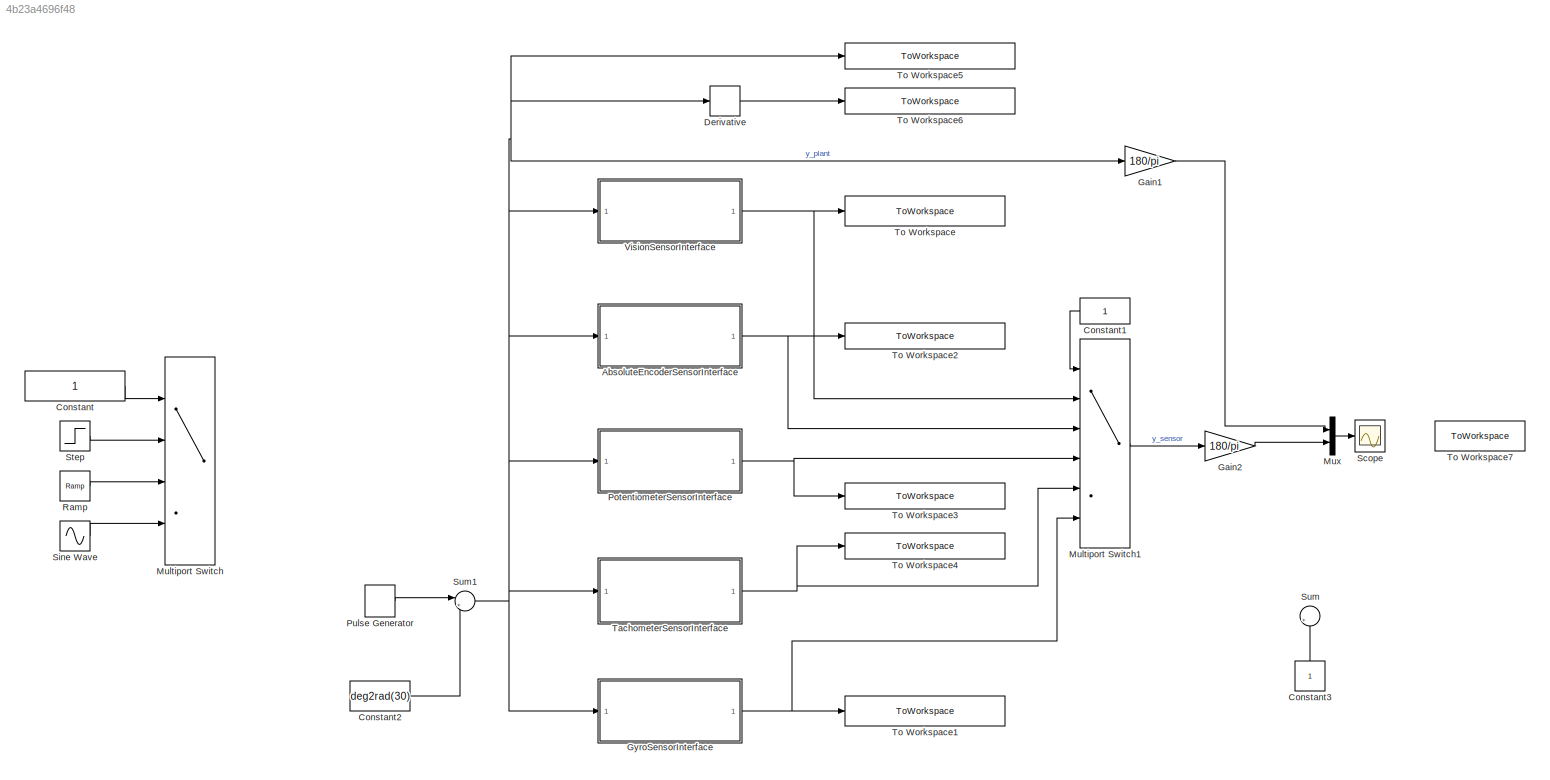
MODEL slx_4b23a4696f48
KIND model
CONFIG AbsTol = auto
CONFIG EnableMultiTasking = off
CONFIG FixedStep = auto
CONFIG InitFcn = ELEN90064_Project_Parameters
CONFIG MaxStep = auto
CONFIG MinStep = auto
CONFIG RelTol = 1e-3
CONFIG SampleTimeConstraint = Unconstrained
CONFIG SolverName = VariableStepAuto
CONFIG StartTime = 0.0
CONFIG StopTime = 1
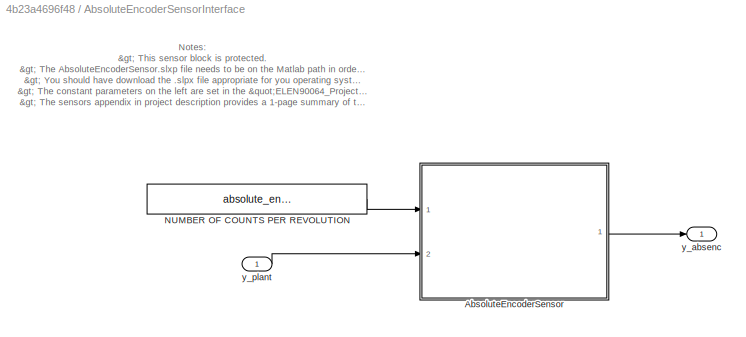
BLOCK [SubSystem] AbsoluteEncoderSensorInterface
  Ports = [1, 1]
  RequestExecContextInheritance = off
  TreatAsAtomicUnit = on
BLOCK [ModelReference] AbsoluteEncoderSensorInterface/AbsoluteEncoderSensor
  CopyOfModelProtected = on
  ModelNameDialog = AbsoluteEncoderSensor.slxp
  ModelReferenceVersion = 1.16
  Ports = [2, 1]
BLOCK [Constant] AbsoluteEncoderSensorInterface/NUMBER OF COUNTS PER REVOLUTION
  Value = absolute_encoder_counts_per_revolution
BLOCK [Outport] AbsoluteEncoderSensorInterface/y_absenc
BLOCK [Inport] AbsoluteEncoderSensorInterface/y_plant
BLOCK [Constant] Constant
BLOCK [Constant] Constant1
BLOCK [Constant] Constant2
  Value = deg2rad(30)
BLOCK [Constant] Constant3
  NameLocation = right
BLOCK [Derivative] Derivative
BLOCK [Gain] Gain1
  Gain = 180/pi
BLOCK [Gain] Gain2
  Gain = 180/pi
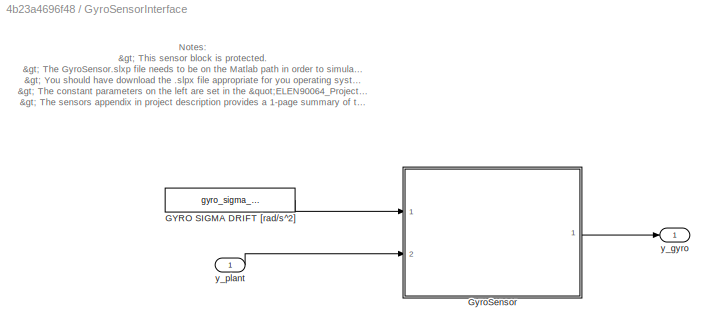
BLOCK [SubSystem] GyroSensorInterface
  Ports = [1, 1]
  RequestExecContextInheritance = off
  TreatAsAtomicUnit = on
BLOCK [Constant] GyroSensorInterface/GYRO SIGMA DRIFT [rad//s^2]
  Value = gyro_sigma_drift
BLOCK [ModelReference] GyroSensorInterface/GyroSensor
  CopyOfModelProtected = on
  ModelNameDialog = GyroSensor.slxp
  ModelReferenceVersion = 1.18
  Ports = [2, 1]
BLOCK [Outport] GyroSensorInterface/y_gyro
BLOCK [Inport] GyroSensorInterface/y_plant
BLOCK [MultiPortSwitch] Multiport Switch
  InputSameDT = off
  Ports = [4, 1]
  SaturateOnIntegerOverflow = off
BLOCK [MultiPortSwitch] Multiport Switch1
  InputSameDT = off
  Inputs = 5
  Ports = [6, 1]
  SaturateOnIntegerOverflow = off
BLOCK [Mux] Mux
  DisplayOption = bar
  Inputs = 2
  Ports = [2, 1]
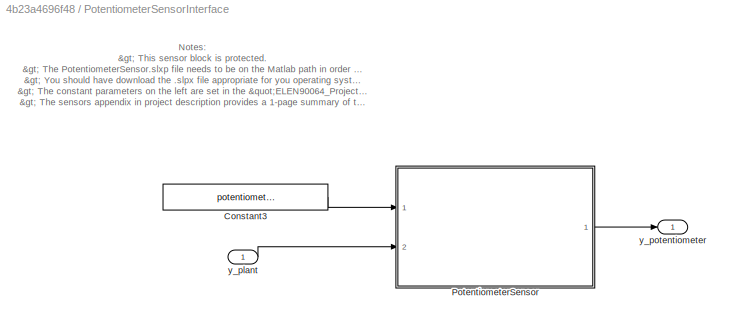
BLOCK [SubSystem] PotentiometerSensorInterface
  Ports = [1, 1]
  RequestExecContextInheritance = off
  TreatAsAtomicUnit = on
BLOCK [Constant] PotentiometerSensorInterface/Constant3
  Value = potentiometer_linearity_percent
BLOCK [ModelReference] PotentiometerSensorInterface/PotentiometerSensor
  CopyOfModelProtected = on
  ModelNameDialog = PotentiometerSensor.slxp
  ModelReferenceVersion = 1.21
  Ports = [2, 1]
BLOCK [Inport] PotentiometerSensorInterface/y_plant
BLOCK [Outport] PotentiometerSensorInterface/y_potentiometer
BLOCK [DiscretePulseGenerator] Pulse Generator
  Amplitude = deg2rad(30)
  Period = 10
  Ports = [0, 1]
  PulseType = Time based
  PulseWidth = 50
BLOCK [Reference] Ramp  REF=simulink/Sources/Ramp
  Ports = [0, 1]
  SourceBlock = simulink/Sources/Ramp
  SourceProductBaseCode = SL
  SourceType = Ramp
BLOCK [Scope] Scope
  Floating = off
  NumInputPorts = 1
  Ports = [1]
  ScopeSpecificationString = Simulink.scopes.TimeScopeBlockCfg('CurrentConfiguration', extmgr.ConfigurationSet(extmgr.Configuration('Core','General UI',true,'FigureColor',[1 1 1]),extmgr.Configuration('Core','Source UI',true),extmgr.Configuration('Sources','WiredSimulink',true),extmgr.Configuration('Visuals','Time Domain',true,'SerializedDisplays',{struct('MinYLimReal','25.19152','MaxYLimReal','66.88027','YLabelReal','','MinY...<+1783ch>
BLOCK [Sin] Sine Wave
  Amplitude = deg2rad(90)
  Frequency = 4*pi
  Ports = [0, 1]
  SampleTime = 0
BLOCK [Step] Step
  After = deg2rad(90)
  Before = theta_l_init
  SampleTime = 0
  Time = 0.1
BLOCK [Sum] Sum
  Inputs = |+-
  Ports = [2, 1]
BLOCK [Sum] Sum1
  Inputs = |++
  Ports = [2, 1]
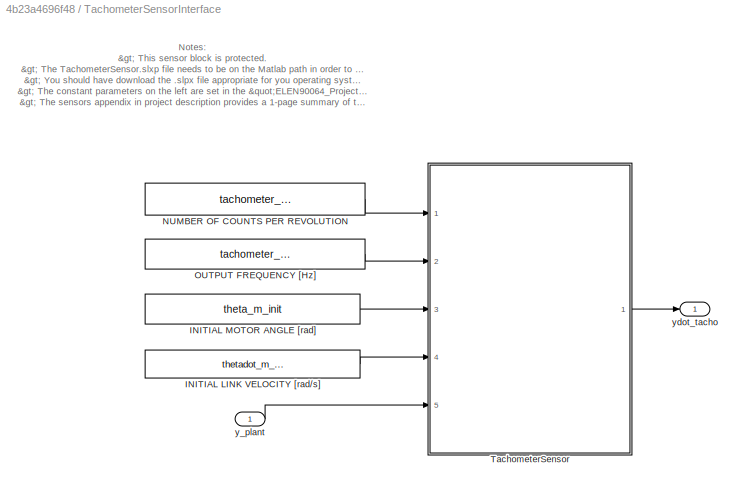
BLOCK [SubSystem] TachometerSensorInterface
  Ports = [1, 1]
  RequestExecContextInheritance = off
  TreatAsAtomicUnit = on
BLOCK [Constant] TachometerSensorInterface/INITIAL LINK VELOCITY [rad//s]
  Value = thetadot_m_init
BLOCK [Constant] TachometerSensorInterface/INITIAL MOTOR ANGLE [rad]
  Value = theta_m_init
BLOCK [Constant] TachometerSensorInterface/NUMBER OF COUNTS PER REVOLUTION
  Value = tachometer_counts_per_revolution
BLOCK [Constant] TachometerSensorInterface/OUTPUT FREQUENCY [Hz]
  Value = tachometer_output_frequency
BLOCK [ModelReference] TachometerSensorInterface/TachometerSensor
  CopyOfModelProtected = on
  ModelNameDialog = TachometerSensor.slxp
  ModelReferenceVersion = 1.31
  Ports = [5, 1]
BLOCK [Inport] TachometerSensorInterface/y_plant
BLOCK [Outport] TachometerSensorInterface/ydot_tacho
BLOCK [ToWorkspace] To Workspace
  FixptAsFi = on
  MaxDataPoints = inf
  Ports = [1]
  SampleTime = 1/1000
  SaveFormat = Timeseries
  VariableName = VisionSensor
BLOCK [ToWorkspace] To Workspace1
  FixptAsFi = on
  MaxDataPoints = inf
  Ports = [1]
  SampleTime = 1/1000
  SaveFormat = Timeseries
  VariableName = GyroSensor
BLOCK [ToWorkspace] To Workspace2
  FixptAsFi = on
  MaxDataPoints = inf
  Ports = [1]
  SampleTime = 1/1000
  SaveFormat = Timeseries
  VariableName = AbsoluteEncoderSensor
BLOCK [ToWorkspace] To Workspace3
  FixptAsFi = on
  MaxDataPoints = inf
  Ports = [1]
  SampleTime = 1/1000
  SaveFormat = Timeseries
  VariableName = PotentiometerSensor
BLOCK [ToWorkspace] To Workspace4
  FixptAsFi = on
  MaxDataPoints = inf
  Ports = [1]
  SampleTime = 1/1000
  SaveFormat = Timeseries
  VariableName = TachometerSensor
BLOCK [ToWorkspace] To Workspace5
  FixptAsFi = on
  MaxDataPoints = inf
  Ports = [1]
  SampleTime = 1/1000
  SaveFormat = Timeseries
  VariableName = InputSignal
BLOCK [ToWorkspace] To Workspace6
  FixptAsFi = on
  MaxDataPoints = inf
  Ports = [1]
  SampleTime = 1/1000
  SaveFormat = Timeseries
  VariableName = InputSignalDerivative
BLOCK [ToWorkspace] To Workspace7
  FixptAsFi = on
  MaxDataPoints = inf
  Ports = [1]
  SampleTime = -1
  SaveFormat = Timeseries
  VariableName = simout
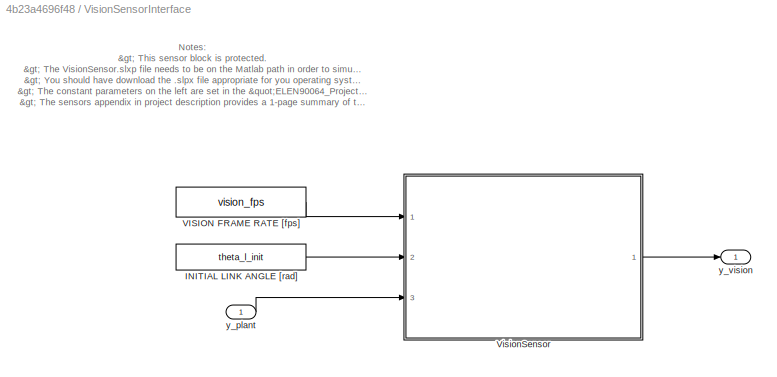
BLOCK [SubSystem] VisionSensorInterface
  Ports = [1, 1]
  RequestExecContextInheritance = off
  TreatAsAtomicUnit = on
BLOCK [Constant] VisionSensorInterface/INITIAL LINK ANGLE [rad]
  Value = theta_l_init
BLOCK [Constant] VisionSensorInterface/VISION FRAME RATE [fps]
  Value = vision_fps
BLOCK [ModelReference] VisionSensorInterface/VisionSensor
  CopyOfModelProtected = on
  ModelNameDialog = VisionSensor.slxp
  ModelReferenceVersion = 1.19
  Ports = [3, 1]
BLOCK [Inport] VisionSensorInterface/y_plant
BLOCK [Outport] VisionSensorInterface/y_vision
ANNOTATION AbsoluteEncoderSensorInterface: Notes: > This sensor block is protected. > The AbsoluteEncoderSensor.slxp file needs to be on the Matlab path in order to simulate this sensor. > You should have download the .slpx file appropriate for you operating system {Windows, Mac, Linux}. > The constant parameters on the left are set in the " ELEN90064_Project_Parameters.m " script. > The sensors appendix in project description provides a 1...<+190ch>
ANNOTATION GyroSensorInterface: Notes: > This sensor block is protected. > The GyroSensor.slxp file needs to be on the Matlab path in order to simulate this sensor. > You should have download the .slpx file appropriate for you operating system {Windows, Mac, Linux}. > The constant parameters on the left are set in the " ELEN90064_Project_Parameters.m " script. > The sensors appendix in project description provides a 1-page summa...<+179ch>
ANNOTATION PotentiometerSensorInterface: Notes: > This sensor block is protected. > The PotentiometerSensor.slxp file needs to be on the Matlab path in order to simulate this sensor. > You should have download the .slpx file appropriate for you operating system {Windows, Mac, Linux}. > The constant parameters on the left are set in the " ELEN90064_Project_Parameters.m " script. > The sensors appendix in project description provides a 1-p...<+188ch>
ANNOTATION TachometerSensorInterface: Notes: > This sensor block is protected. > The TachometerSensor.slxp file needs to be on the Matlab path in order to simulate this sensor. > You should have download the .slpx file appropriate for you operating system {Windows, Mac, Linux}. > The constant parameters on the left are set in the "ELEN90064_Project_Parameters.m" script. > The sensors appendix in project description provides a 1-page s...<+183ch>
ANNOTATION VisionSensorInterface: Notes: > This sensor block is protected. > The VisionSensor.slxp file needs to be on the Matlab path in order to simulate this sensor. > You should have download the .slpx file appropriate for you operating system {Windows, Mac, Linux}. > The constant parameters on the left are set in the "ELEN90064_Project_Parameters.m" script. > The sensors appendix in project description provides a 1-page summa...<+179ch>
LINE AbsoluteEncoderSensorInterface/AbsoluteEncoderSensor:1 -> AbsoluteEncoderSensorInterface/y_absenc:1
LINE AbsoluteEncoderSensorInterface/NUMBER OF COUNTS PER REVOLUTION:1 -> AbsoluteEncoderSensorInterface/AbsoluteEncoderSensor:1
LINE AbsoluteEncoderSensorInterface/y_plant:1 -> AbsoluteEncoderSensorInterface/AbsoluteEncoderSensor:2
NET AbsoluteEncoderSensorInterface:1 -> Multiport Switch1:3, To Workspace2:1
LINE Constant1:1 -> Multiport Switch1:1
LINE Constant2:1 -> Sum1:2
LINE Constant3:1 -> Sum:2
LINE Constant:1 -> Multiport Switch:1
LINE Derivative:1 -> To Workspace6:1
LINE Gain1:1 -> Mux:1
LINE Gain2:1 -> Mux:2
LINE GyroSensorInterface/GYRO SIGMA DRIFT [rad//s^2]:1 -> GyroSensorInterface/GyroSensor:1
LINE GyroSensorInterface/GyroSensor:1 -> GyroSensorInterface/y_gyro:1
LINE GyroSensorInterface/y_plant:1 -> GyroSensorInterface/GyroSensor:2
NET GyroSensorInterface:1 -> Multiport Switch1:6, To Workspace1:1
LINE Multiport Switch1:1 -> Gain2:1
LINE Mux:1 -> Scope:1
LINE PotentiometerSensorInterface/Constant3:1 -> PotentiometerSensorInterface/PotentiometerSensor:1
LINE PotentiometerSensorInterface/PotentiometerSensor:1 -> PotentiometerSensorInterface/y_potentiometer:1
LINE PotentiometerSensorInterface/y_plant:1 -> PotentiometerSensorInterface/PotentiometerSensor:2
NET PotentiometerSensorInterface:1 -> Multiport Switch1:4, To Workspace3:1
LINE Pulse Generator:1 -> Sum1:1
LINE Ramp:1 -> Multiport Switch:3
LINE Sine Wave:1 -> Multiport Switch:4
LINE Step:1 -> Multiport Switch:2
NET Sum1:1 -> AbsoluteEncoderSensorInterface:1, Derivative:1, Gain1:1, GyroSensorInterface:1, PotentiometerSensorInterface:1, TachometerSensorInterface:1, To Workspace5:1, VisionSensorInterface:1
LINE TachometerSensorInterface/INITIAL LINK VELOCITY [rad//s]:1 -> TachometerSensorInterface/TachometerSensor:4
LINE TachometerSensorInterface/INITIAL MOTOR ANGLE [rad]:1 -> TachometerSensorInterface/TachometerSensor:3
LINE TachometerSensorInterface/NUMBER OF COUNTS PER REVOLUTION:1 -> TachometerSensorInterface/TachometerSensor:1
LINE TachometerSensorInterface/OUTPUT FREQUENCY [Hz]:1 -> TachometerSensorInterface/TachometerSensor:2
LINE TachometerSensorInterface/TachometerSensor:1 -> TachometerSensorInterface/ydot_tacho:1
LINE TachometerSensorInterface/y_plant:1 -> TachometerSensorInterface/TachometerSensor:5
NET TachometerSensorInterface:1 -> Multiport Switch1:5, To Workspace4:1
LINE VisionSensorInterface/INITIAL LINK ANGLE [rad]:1 -> VisionSensorInterface/VisionSensor:2
LINE VisionSensorInterface/VISION FRAME RATE [fps]:1 -> VisionSensorInterface/VisionSensor:1
LINE VisionSensorInterface/VisionSensor:1 -> VisionSensorInterface/y_vision:1
LINE VisionSensorInterface/y_plant:1 -> VisionSensorInterface/VisionSensor:3
NET VisionSensorInterface:1 -> Multiport Switch1:2, To Workspace:1
note: NET lines group one-source signal fan-out (src -> all destinations, sorted); 1:1 wires keep LINE
